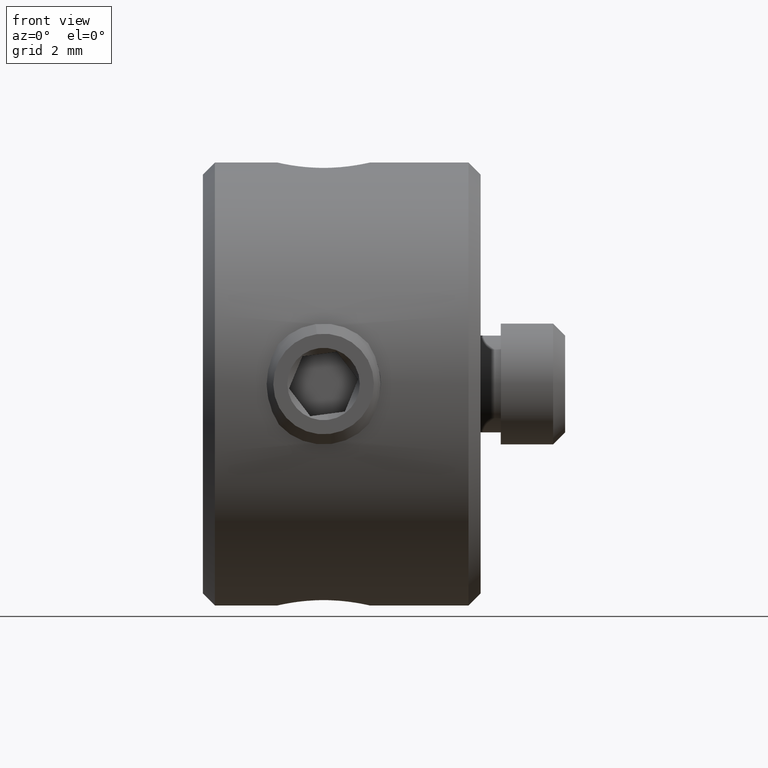
[diagram: clean part render]
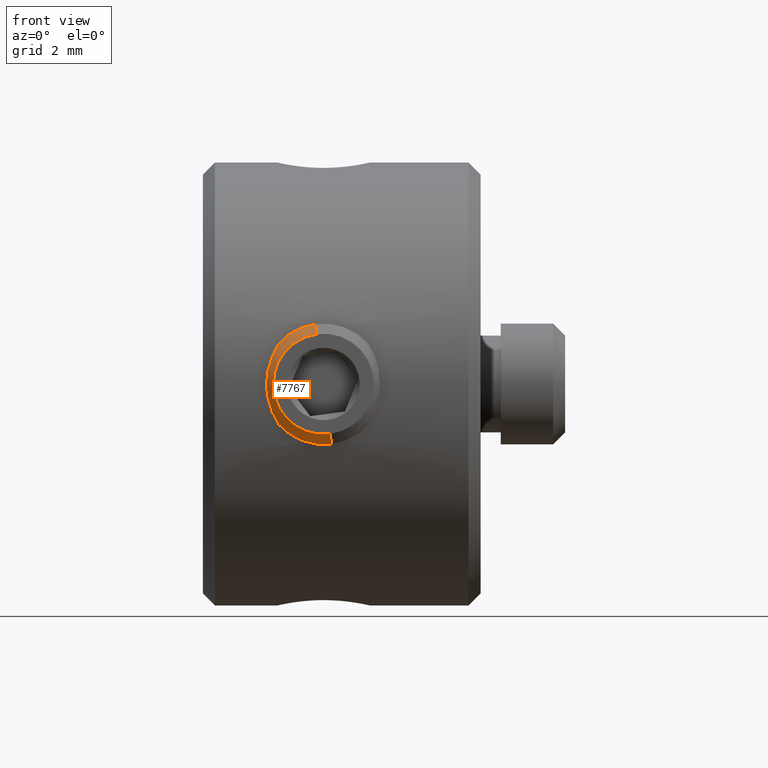
[diagram: same view with one face highlighted and labeled with its STEP entity id]
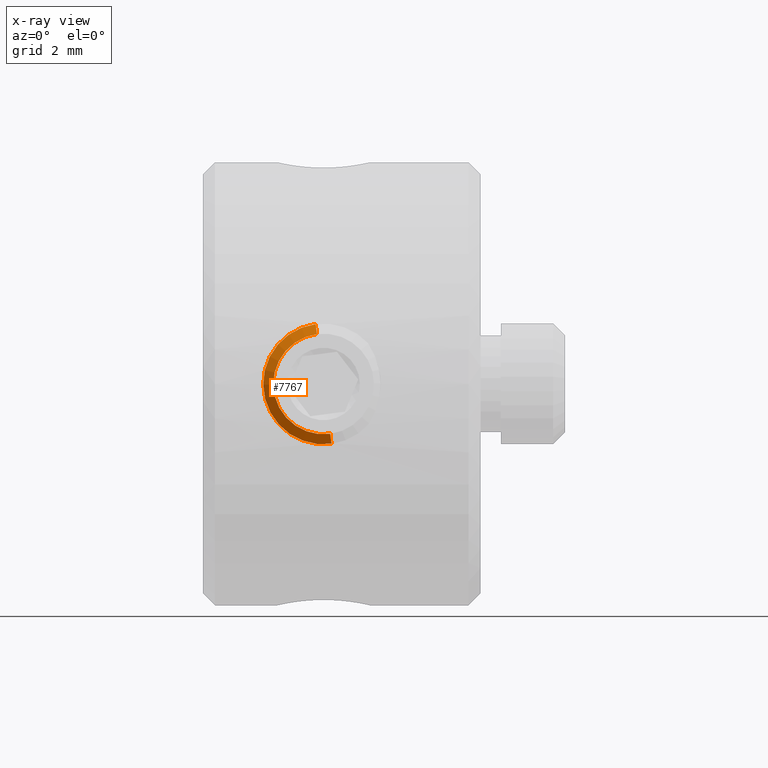
[diagram: x-ray of the same camera — body ghosted, the highlighted face saturated]
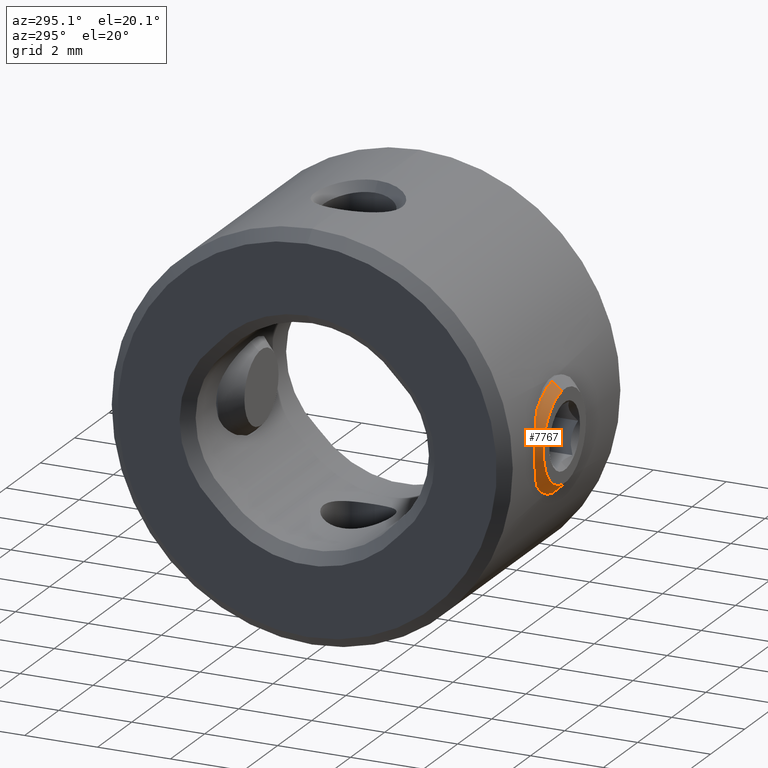
[diagram: same view with one face highlighted and labeled with its STEP entity id]
A machine part, front view. The second image highlights one B-rep face of the part: STEP entity #7767.
The next image is the same camera in x-ray: the body ghosted, the highlighted face saturated — about 0% of this face is hidden behind the body in this view.
A second angle (auxiliary view) of the same face is appended — the face is thin or edge-on in the first view.
In plain terms, the highlighted conical surface has half-angle 45 deg.
Its self-contained STEP definition (entity closure, byte-faithful):
#67 = CARTESIAN_POINT ( 'NONE',  ( 3.164226946185553668, -5.657278291523188507, -1.239164843814845929 ) ) ;
#76 = EDGE_CURVE ( 'NONE', #1775, #5350, #6785, .T. ) ;
#152 = LINE ( 'NONE', #67, #3786 ) ;
#168 = DIRECTION ( 'NONE',  ( -0.09290078984108907090, 0.7071067811865355823, 0.7009774912555457593 ) ) ;
#629 = DIRECTION ( 'NONE',  ( -0.000000000000000000, 1.000000000000000000, -0.000000000000000000 ) ) ;
#671 = ORIENTED_EDGE ( 'NONE', *, *, #76, .F. ) ;
#714 = CARTESIAN_POINT ( 'NONE',  ( 2.835773053814445888, -5.657278291523188507, 1.239164843814845485 ) ) ;
#771 = VERTEX_POINT ( 'NONE', #1678 ) ;
#1194 = DIRECTION ( 'NONE',  ( 0.09290078984108914029, 0.7071067811865355823, -0.7009774912555457593 ) ) ;
#1527 = LINE ( 'NONE', #714, #6692 ) ;
#1678 = CARTESIAN_POINT ( 'NONE',  ( 3.164226946185553668, -5.657278291523188507, -1.239164843814845929 ) ) ;
#1775 = VERTEX_POINT ( 'NONE', #5203 ) ;
#2236 = CARTESIAN_POINT ( 'NONE',  ( 2.999999999999999556, -5.657278291523188507, -1.490777987167568597E-16 ) ) ;
#2299 = EDGE_CURVE ( 'NONE', #5339, #771, #5019, .T. ) ;
#2357 = EDGE_LOOP ( 'NONE', ( #2744, #6232, #5437, #671 ) ) ;
#2488 = FACE_OUTER_BOUND ( 'NONE', #2357, .T. ) ;
#2744 = ORIENTED_EDGE ( 'NONE', *, *, #3756, .F. ) ;
#3027 = DIRECTION ( 'NONE',  ( 0.1313815569484386159, 0.000000000000000000, -0.9913318750518437250 ) ) ;
#3161 = DIRECTION ( 'NONE',  ( 0.000000000000000000, -1.000000000000000000, 0.000000000000000000 ) ) ;
#3592 = AXIS2_PLACEMENT_3D ( 'NONE', #4417, #629, #3027 ) ;
#3604 = AXIS2_PLACEMENT_3D ( 'NONE', #5720, #3161, #7597 ) ;
#3756 = EDGE_CURVE ( 'NONE', #771, #1775, #152, .T. ) ;
#3786 = VECTOR ( 'NONE', #1194, 999.9999999999998863 ) ;
#4417 = CARTESIAN_POINT ( 'NONE',  ( 2.999999999999999556, -5.407278291523189395, -1.490777987167568597E-16 ) ) ;
#4894 = DIRECTION ( 'NONE',  ( -0.1313815569484387824, 0.000000000000000000, 0.9913318750518436140 ) ) ;
#5000 = EDGE_CURVE ( 'NONE', #5339, #5350, #1527, .T. ) ;
#5019 = CIRCLE ( 'NONE', #3604, 1.250000000000041522 ) ;
#5203 = CARTESIAN_POINT ( 'NONE',  ( 3.197072335422664224, -5.407278291523189395, -1.486997812577814493 ) ) ;
#5339 = VERTEX_POINT ( 'NONE', #6153 ) ;
#5350 = VERTEX_POINT ( 'NONE', #7415 ) ;
#5437 = ORIENTED_EDGE ( 'NONE', *, *, #5000, .T. ) ;
#5585 = CONICAL_SURFACE ( 'NONE', #8035, 1.250000000000041522, 0.7853981633974488341 ) ;
#5720 = CARTESIAN_POINT ( 'NONE',  ( 2.999999999999999556, -5.657278291523188507, -1.490777987167568597E-16 ) ) ;
#6088 = DIRECTION ( 'NONE',  ( 0.000000000000000000, 1.000000000000000000, 0.000000000000000000 ) ) ;
#6153 = CARTESIAN_POINT ( 'NONE',  ( 2.835773053814445888, -5.657278291523188507, 1.239164843814845485 ) ) ;
#6232 = ORIENTED_EDGE ( 'NONE', *, *, #2299, .F. ) ;
#6692 = VECTOR ( 'NONE', #168, 999.9999999999998863 ) ;
#6785 = CIRCLE ( 'NONE', #3592, 1.500000000000049516 ) ;
#7415 = CARTESIAN_POINT ( 'NONE',  ( 2.802927664577335332, -5.407278291523189395, 1.486997812577814271 ) ) ;
#7597 = DIRECTION ( 'NONE',  ( 0.1313815569484387824, 0.000000000000000000, -0.9913318750518436140 ) ) ;
#7767 = ADVANCED_FACE ( 'NONE', ( #2488 ), #5585, .T. ) ;
#8035 = AXIS2_PLACEMENT_3D ( 'NONE', #2236, #6088, #4894 ) ;